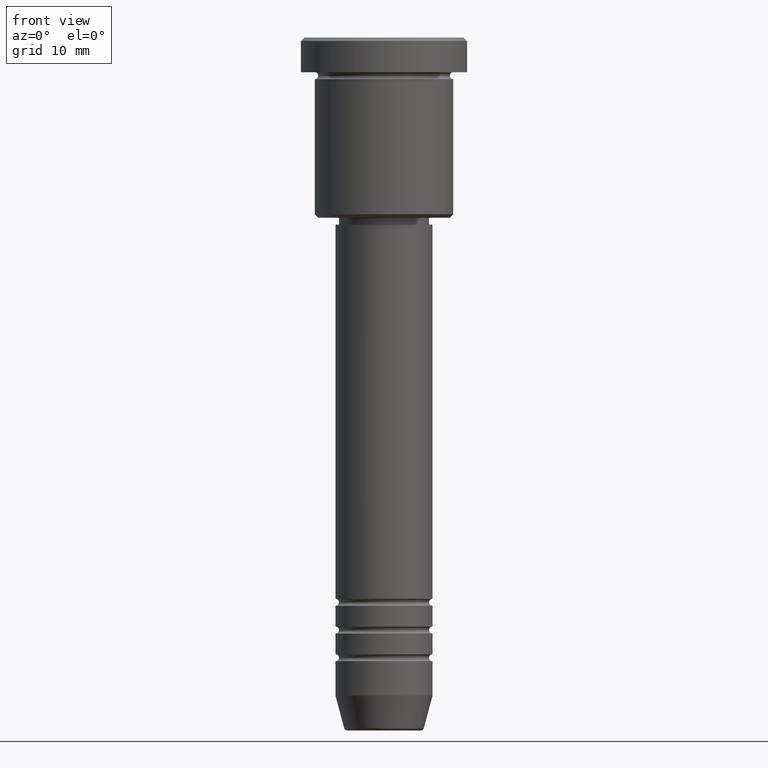
[diagram: clean part render]
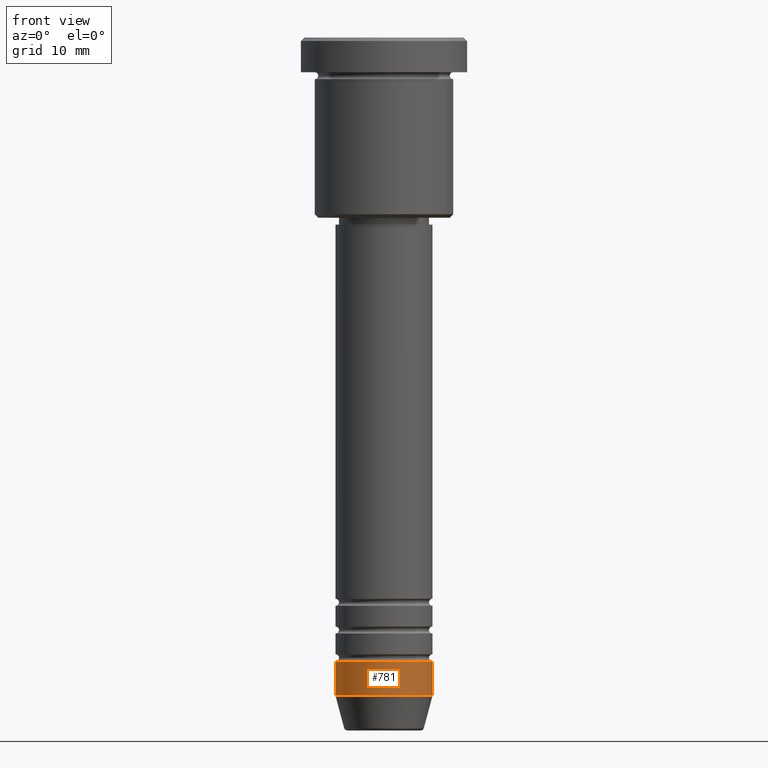
[diagram: same view with one face highlighted and labeled with its STEP entity id]
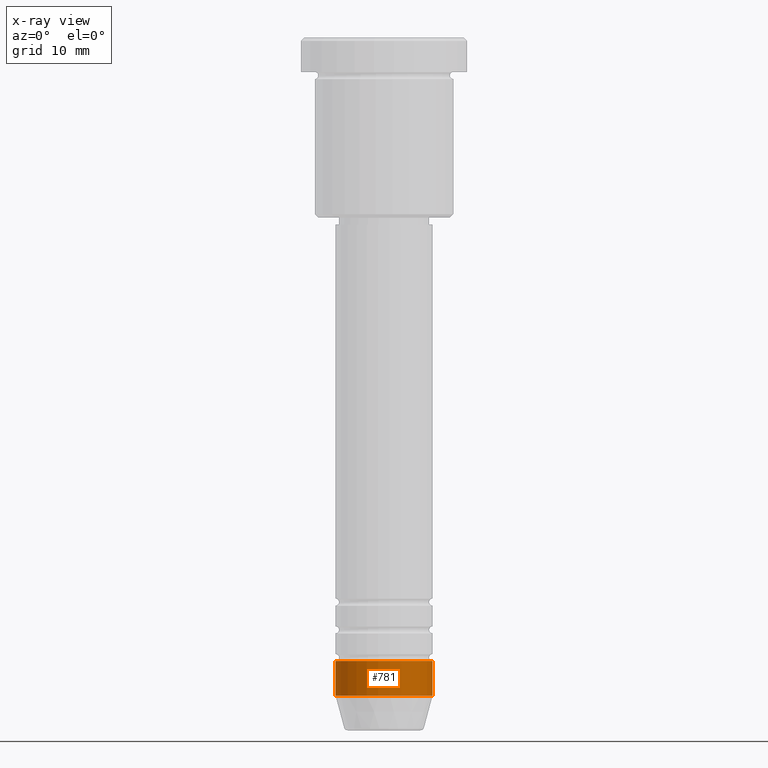
[diagram: x-ray of the same camera — body ghosted, the highlighted face saturated]
A machine part, front view. The second image highlights one B-rep face of the part: STEP entity #781.
The next image is the same camera in x-ray: the body ghosted, the highlighted face saturated — about 0% of this face is hidden behind the body in this view.
In plain terms, the highlighted cylindrical surface (partial cylindrical patch) has radius 7 mm, axis along (-0, -0, 1).
Its self-contained STEP definition (entity closure, byte-faithful):
#18 = AXIS2_PLACEMENT_3D ( 'NONE', #597, #1137, #44 ) ;
#44 = DIRECTION ( 'NONE',  ( 1.000000000000000000, 0.000000000000000000, 0.000000000000000000 ) ) ;
#132 = VERTEX_POINT ( 'NONE', #474 ) ;
#170 = VECTOR ( 'NONE', #1105, 1000.000000000000000 ) ;
#171 = CARTESIAN_POINT ( 'NONE',  ( 0.000000000000000000, 0.000000000000000000, -90.00000000000000000 ) ) ;
#184 = DIRECTION ( 'NONE',  ( 1.000000000000000000, 0.000000000000000000, 0.000000000000000000 ) ) ;
#208 = VECTOR ( 'NONE', #1071, 1000.000000000000000 ) ;
#247 = DIRECTION ( 'NONE',  ( 1.000000000000000000, 0.000000000000000000, 0.000000000000000000 ) ) ;
#332 = CARTESIAN_POINT ( 'NONE',  ( -7.000000000000000000, 8.572527594031473190E-16, -90.00000000000000000 ) ) ;
#336 = EDGE_CURVE ( 'NONE', #1003, #705, #344, .T. ) ;
#344 = LINE ( 'NONE', #711, #208 ) ;
#348 = FACE_OUTER_BOUND ( 'NONE', #970, .T. ) ;
#375 = AXIS2_PLACEMENT_3D ( 'NONE', #171, #532, #184 ) ;
#416 = AXIS2_PLACEMENT_3D ( 'NONE', #1061, #806, #247 ) ;
#452 = EDGE_CURVE ( 'NONE', #1005, #705, #796, .T. ) ;
#459 = ORIENTED_EDGE ( 'NONE', *, *, #861, .F. ) ;
#474 = CARTESIAN_POINT ( 'NONE',  ( -7.000000000000000888, 8.572527594031474176E-16, -95.00000000000000000 ) ) ;
#482 = ORIENTED_EDGE ( 'NONE', *, *, #1036, .T. ) ;
#528 = CYLINDRICAL_SURFACE ( 'NONE', #416, 7.000000000000000888 ) ;
#532 = DIRECTION ( 'NONE',  ( -0.000000000000000000, -0.000000000000000000, 1.000000000000000000 ) ) ;
#597 = CARTESIAN_POINT ( 'NONE',  ( 0.000000000000000000, 0.000000000000000000, -95.00000000000000000 ) ) ;
#658 = CARTESIAN_POINT ( 'NONE',  ( -7.000000000000000888, 8.572527594031474176E-16, 0.000000000000000000 ) ) ;
#705 = VERTEX_POINT ( 'NONE', #1079 ) ;
#711 = CARTESIAN_POINT ( 'NONE',  ( 7.000000000000000888, 0.000000000000000000, 0.000000000000000000 ) ) ;
#722 = ORIENTED_EDGE ( 'NONE', *, *, #336, .T. ) ;
#781 = ADVANCED_FACE ( 'NONE', ( #348 ), #528, .T. ) ;
#796 = CIRCLE ( 'NONE', #375, 7.000000000000000000 ) ;
#806 = DIRECTION ( 'NONE',  ( -0.000000000000000000, -0.000000000000000000, 1.000000000000000000 ) ) ;
#816 = CIRCLE ( 'NONE', #18, 7.000000000000000888 ) ;
#822 = LINE ( 'NONE', #658, #170 ) ;
#847 = ORIENTED_EDGE ( 'NONE', *, *, #452, .F. ) ;
#861 = EDGE_CURVE ( 'NONE', #132, #1005, #822, .T. ) ;
#945 = CARTESIAN_POINT ( 'NONE',  ( 7.000000000000000888, 0.000000000000000000, -95.00000000000000000 ) ) ;
#970 = EDGE_LOOP ( 'NONE', ( #459, #482, #722, #847 ) ) ;
#1003 = VERTEX_POINT ( 'NONE', #945 ) ;
#1005 = VERTEX_POINT ( 'NONE', #332 ) ;
#1036 = EDGE_CURVE ( 'NONE', #132, #1003, #816, .T. ) ;
#1061 = CARTESIAN_POINT ( 'NONE',  ( 0.000000000000000000, 0.000000000000000000, 0.000000000000000000 ) ) ;
#1071 = DIRECTION ( 'NONE',  ( -0.000000000000000000, -0.000000000000000000, 1.000000000000000000 ) ) ;
#1079 = CARTESIAN_POINT ( 'NONE',  ( 7.000000000000000000, 0.000000000000000000, -90.00000000000000000 ) ) ;
#1105 = DIRECTION ( 'NONE',  ( -0.000000000000000000, -0.000000000000000000, 1.000000000000000000 ) ) ;
#1137 = DIRECTION ( 'NONE',  ( -0.000000000000000000, -0.000000000000000000, 1.000000000000000000 ) ) ;